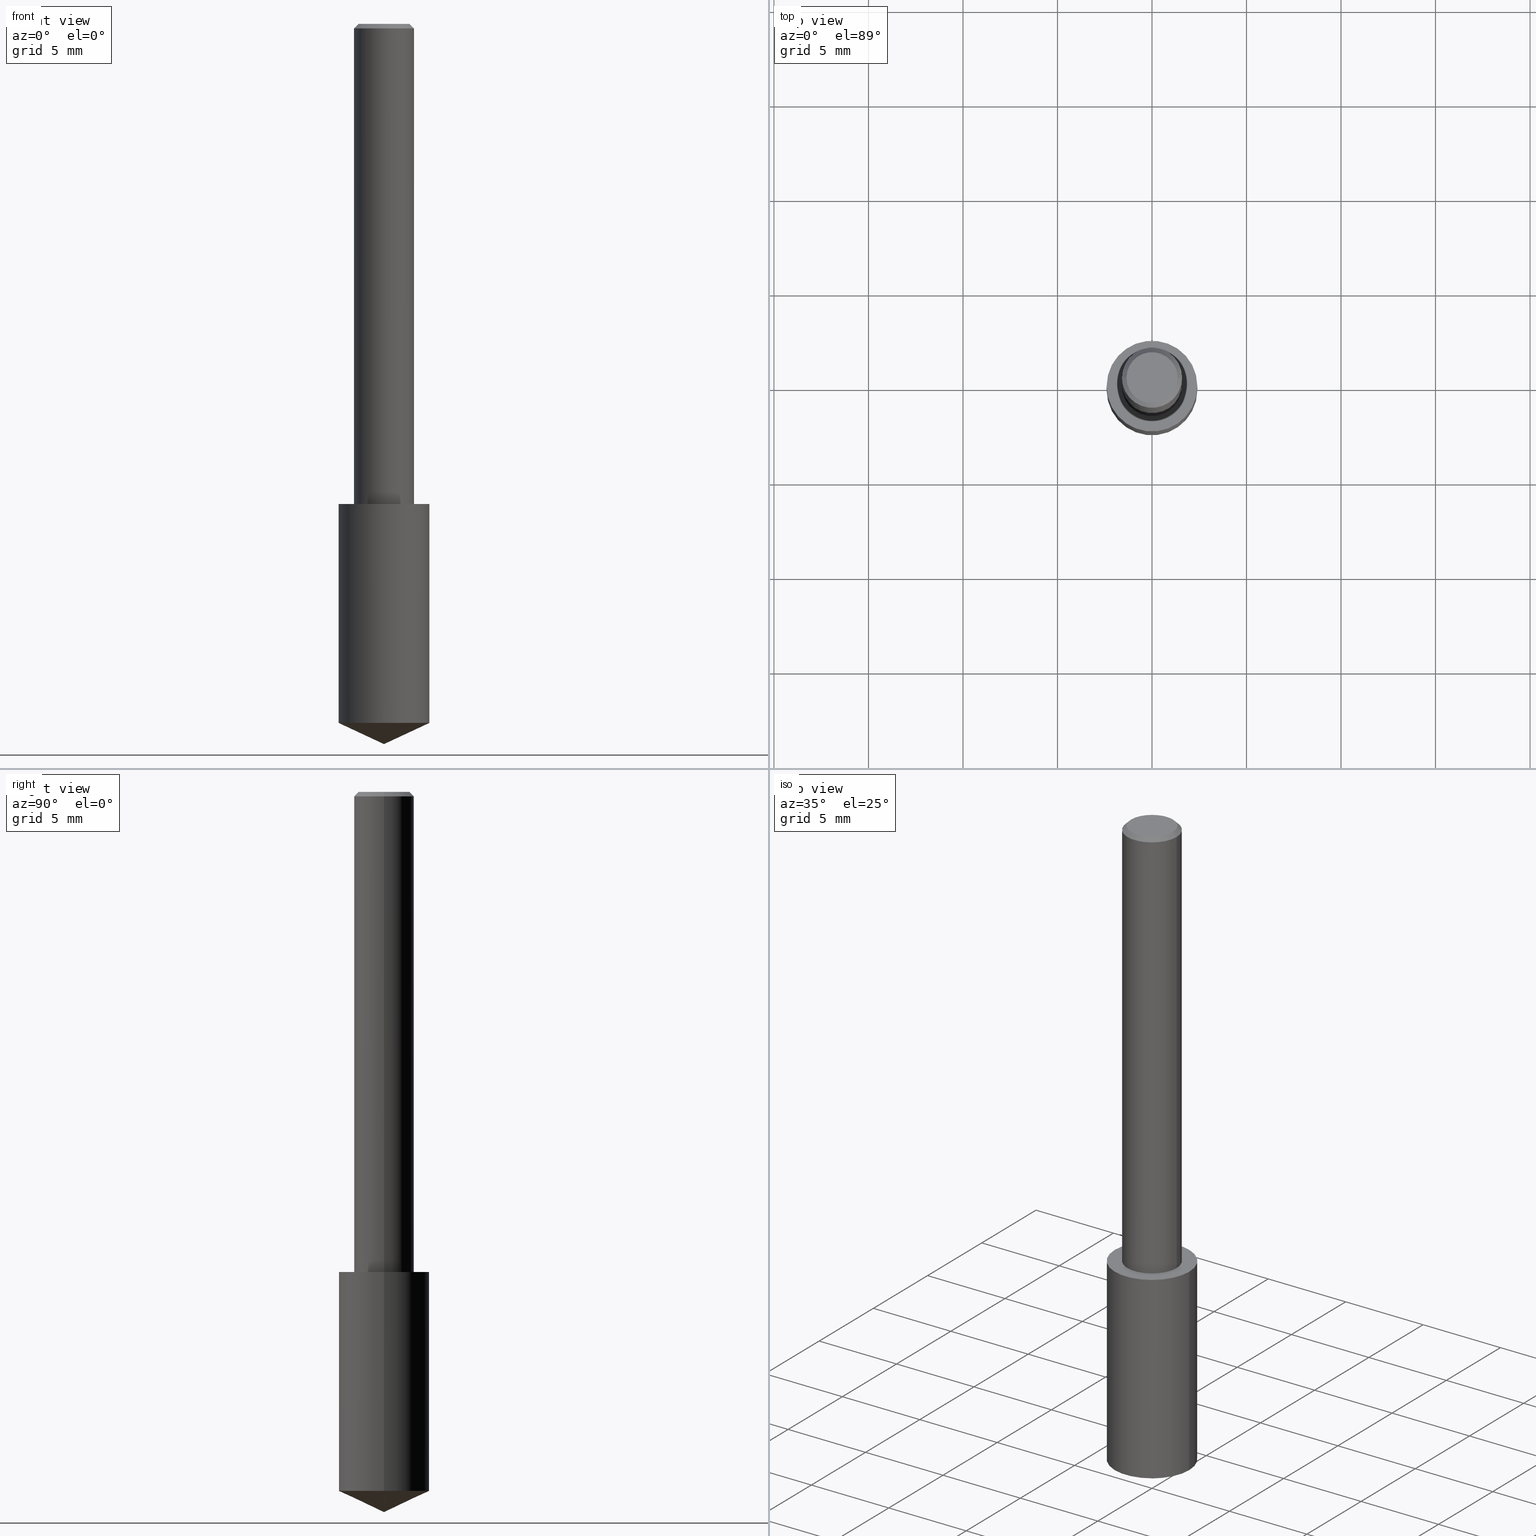
[diagram: canonical four-view strip — front | top / right | iso, engineering-drawing reading convention]
A machine part, canonical four-view strip (front | top / right | iso — engineering-drawing reading convention). The complete STEP part file that produces these views, byte-faithful:
ISO-10303-21;
HEADER;
FILE_DESCRIPTION (( 'STEP AP203' ),
    '1' );
FILE_NAME ('06124.STEP',
    '2024-04-30T18:30:06',
    ( '' ),
    ( '' ),
    'SwSTEP 2.0',
    'SolidWorks 2023',
    '' );
FILE_SCHEMA (( 'CONFIG_CONTROL_DESIGN' ));
ENDSEC;

DATA;
#1 = CARTESIAN_POINT ( 'NONE',  ( -0.09450000000000001454, -4.411903248986985027E-15, -1.455933926304352921 ) ) ;
#2 = DIRECTION ( 'NONE',  ( -2.445468806185136597E-29, 3.491481338843145583E-15, 1.000000000000000000 ) ) ;
#3 = FACE_OUTER_BOUND ( 'NONE', #249, .T. ) ;
#4 = EDGE_CURVE ( 'NONE', #139, #196, #252, .T. ) ;
#5 = VECTOR ( 'NONE', #302, 39.37007874015748143 ) ;
#6 = CALENDAR_DATE ( 2024, 30, 4 ) ;
#7 = EDGE_CURVE ( 'NONE', #191, #50, #194, .T. ) ;
#8 = CARTESIAN_POINT ( 'NONE',  ( -0.05312499999999999861, 3.873362110279099094E-16, 3.061616995216862494E-21 ) ) ;
#9 = ORIENTED_EDGE ( 'NONE', *, *, #129, .F. ) ;
#10 = AXIS2_PLACEMENT_3D ( 'NONE', #43, #44, #288 ) ;
#11 = ADVANCED_FACE ( 'NONE', ( #282 ), #14, .T. ) ;
#12 = CARTESIAN_POINT ( 'NONE',  ( 0.000000000000000000, 0.000000000000000000, 0.000000000000000000 ) ) ;
#13 = ORIENTED_EDGE ( 'NONE', *, *, #129, .T. ) ;
#14 = CYLINDRICAL_SURFACE ( 'NONE', #228, 0.06250000000000006939 ) ;
#15 = CARTESIAN_POINT ( 'NONE',  ( -9.261009624683002666E-28, 1.322226732217803884E-13, 37.87007874015748143 ) ) ;
#16 = EDGE_LOOP ( 'NONE', ( #276, #295, #267 ) ) ;
#17 = CARTESIAN_POINT ( 'NONE',  ( 3.668203209277704895E-29, -5.237222008264718177E-15, -1.500000000000000222 ) ) ;
#18 = CIRCLE ( 'NONE', #10, 0.06250000000000000000 ) ;
#19 = CARTESIAN_POINT ( 'NONE',  ( 2.292627005798582375E-31, -3.273263755165473266E-17, -0.009375000000000069042 ) ) ;
#20 = CARTESIAN_POINT ( 'NONE',  ( 0.06250000000000000000, -4.691678049070464390E-16, -0.009375000000000069042 ) ) ;
#21 = APPROVAL ( #108, 'UNSPECIFIED' ) ;
#22 = CARTESIAN_POINT ( 'NONE',  ( 2.445468806185136877E-29, -3.491481338843145977E-15, -1.000000000000000222 ) ) ;
#23 = ADVANCED_FACE ( 'NONE', ( #88 ), #172, .T. ) ;
#24 = FACE_OUTER_BOUND ( 'NONE', #56, .T. ) ;
#25 = AXIS2_PLACEMENT_3D ( 'NONE', #145, #337, #101 ) ;
#26 = PERSON_AND_ORGANIZATION ( #151, #235 ) ;
#27 = CARTESIAN_POINT ( 'NONE',  ( 3.668203209277704895E-29, -5.237222008264718177E-15, -1.500000000000000222 ) ) ;
#28 = CARTESIAN_POINT ( 'NONE',  ( 2.292627005798582375E-31, -3.273263755165473266E-17, -0.009375000000000069042 ) ) ;
#29 = VERTEX_POINT ( 'NONE', #61 ) ;
#30 = CARTESIAN_POINT ( 'NONE',  ( 2.445468806185137438E-29, -3.491481338843146371E-15, -1.000000000000000222 ) ) ;
#31 = ORIENTED_EDGE ( 'NONE', *, *, #125, .F. ) ;
#32 = AXIS2_PLACEMENT_3D ( 'NONE', #19, #66, #227 ) ;
#33 = PERSON_AND_ORGANIZATION_ROLE ( 'design_owner' ) ;
#34 = ORIENTED_EDGE ( 'NONE', *, *, #153, .F. ) ;
#35 = ORIENTED_EDGE ( 'NONE', *, *, #253, .T. ) ;
#36 = CARTESIAN_POINT ( 'NONE',  ( 2.445468806185137438E-29, -3.491481338843146371E-15, -1.000000000000000222 ) ) ;
#37 = VECTOR ( 'NONE', #74, 39.37007874015748143 ) ;
#38 = CARTESIAN_POINT ( 'NONE',  ( 2.445468806185137438E-29, -3.491481338843146371E-15, -1.000000000000000222 ) ) ;
#39 = CARTESIAN_POINT ( 'NONE',  ( -7.487088864773345706E-50, 1.068957861474247695E-35, 3.061616997868395197E-21 ) ) ;
#40 = ADVANCED_FACE ( 'NONE', ( #254 ), #213, .T. ) ;
#41 = DIRECTION ( 'NONE',  ( -2.445468806185136597E-29, 3.491481338843145583E-15, 1.000000000000000000 ) ) ;
#42 = AXIS2_PLACEMENT_3D ( 'NONE', #38, #142, #137 ) ;
#43 = CARTESIAN_POINT ( 'NONE',  ( 2.292627005798582375E-31, -3.273263755165473266E-17, -0.009375000000000069042 ) ) ;
#44 = DIRECTION ( 'NONE',  ( -2.445468806185136597E-29, 3.491481338843145583E-15, 1.000000000000000000 ) ) ;
#45 = CARTESIAN_POINT ( 'NONE',  ( 3.454801746971892367E-29, -2.046059119973165044E-15, -1.000000000000000222 ) ) ;
#46 = CC_DESIGN_PERSON_AND_ORGANIZATION_ASSIGNMENT ( #89, #206, ( #80 ) ) ;
#47 = AXIS2_PLACEMENT_3D ( 'NONE', #39, #69, #207 ) ;
#48 = LOCAL_TIME ( 14, 30, 6.000000000000000000, #106 ) ;
#49 = ORIENTED_EDGE ( 'NONE', *, *, #147, .F. ) ;
#50 = VERTEX_POINT ( 'NONE', #313 ) ;
#51 = CARTESIAN_POINT ( 'NONE',  ( 0.06250000000000000000, -4.615137624123754923E-16, -0.009375000000000069042 ) ) ;
#52 = PRODUCT_DEFINITION_SHAPE ( 'NONE', 'NONE',  #80 ) ;
#53 = CARTESIAN_POINT ( 'NONE',  ( 0.000000000000000000, 0.000000000000000000, 0.000000000000000000 ) ) ;
#54 = EDGE_LOOP ( 'NONE', ( #193, #35 ) ) ;
#55 =( NAMED_UNIT ( * ) SI_UNIT ( $, .STERADIAN. ) SOLID_ANGLE_UNIT ( ) );
#56 = EDGE_LOOP ( 'NONE', ( #327, #301, #31 ) ) ;
#57 = CONICAL_SURFACE ( 'NONE', #265, 0.06250000000000000000, 0.7853981633974447263 ) ;
#58 = DIRECTION ( 'NONE',  ( -2.438088387897960049E-29, 3.491481338843145188E-15, 1.000000000000000000 ) ) ;
#59 = DIRECTION ( 'NONE',  ( -2.445468806185136877E-29, 3.491481338843145188E-15, 1.000000000000000000 ) ) ;
#60 = VERTEX_POINT ( 'NONE', #97 ) ;
#61 = CARTESIAN_POINT ( 'NONE',  ( -0.09449999999999998679, -3.615960851268418458E-15, -1.000000000000000222 ) ) ;
#62 = AXIS2_PLACEMENT_3D ( 'NONE', #15, #226, #336 ) ;
#63 = PERSON_AND_ORGANIZATION ( #151, #235 ) ;
#64 = DIRECTION ( 'NONE',  ( -1.000000000000000000, 6.982962677686265922E-15, -4.876176775795935793E-29 ) ) ;
#65 = EDGE_CURVE ( 'NONE', #310, #60, #299, .T. ) ;
#66 = DIRECTION ( 'NONE',  ( -2.445468806185136597E-29, 3.491481338843145583E-15, 1.000000000000000000 ) ) ;
#67 = CYLINDRICAL_SURFACE ( 'NONE', #68, 0.09449999999999998679 ) ;
#68 = AXIS2_PLACEMENT_3D ( 'NONE', #94, #143, #264 ) ;
#69 = DIRECTION ( 'NONE',  ( -2.445468806185136597E-29, 3.491481338843145583E-15, 1.000000000000000000 ) ) ;
#70 = CARTESIAN_POINT ( 'NONE',  ( 0.09449999999999998679, -4.151371311884497992E-15, -1.000000000000000222 ) ) ;
#71 = APPLICATION_CONTEXT ( 'configuration controlled 3d designs of mechanical parts and assemblies' ) ;
#72 = DATE_AND_TIME ( #144, #247 ) ;
#73 = APPROVAL_PERSON_ORGANIZATION ( #26, #248, #240 ) ;
#74 = DIRECTION ( 'NONE',  ( 0.7071067811865450192, -7.319954787623246579E-15, -0.7071067811865500152 ) ) ;
#75 = FACE_OUTER_BOUND ( 'NONE', #116, .T. ) ;
#76 = VECTOR ( 'NONE', #59, 39.37007874015748143 ) ;
#77 = APPROVAL_PERSON_ORGANIZATION ( #244, #21, #217 ) ;
#78 = ADVANCED_FACE ( 'NONE', ( #208 ), #67, .T. ) ;
#79 = ORIENTED_EDGE ( 'NONE', *, *, #4, .F. ) ;
#80 = PRODUCT_DEFINITION ( 'UNKNOWN', '', #174, #329 ) ;
#81 = VERTEX_POINT ( 'NONE', #1 ) ;
#82 = CARTESIAN_POINT ( 'NONE',  ( -0.06250000000000000000, -1.318017778347336672E-15, -0.009375000000000069042 ) ) ;
#83 = EDGE_LOOP ( 'NONE', ( #164, #175, #112, #79 ) ) ;
#84 = ORIENTED_EDGE ( 'NONE', *, *, #65, .T. ) ;
#85 = SHAPE_DEFINITION_REPRESENTATION ( #52, #103 ) ;
#86 = AXIS2_PLACEMENT_3D ( 'NONE', #28, #186, #133 ) ;
#87 = CC_DESIGN_APPROVAL ( #236, ( #174 ) ) ;
#88 = FACE_OUTER_BOUND ( 'NONE', #309, .T. ) ;
#89 = PERSON_AND_ORGANIZATION ( #151, #235 ) ;
#90 = ORIENTED_EDGE ( 'NONE', *, *, #219, .F. ) ;
#91 = DATE_AND_TIME ( #173, #325 ) ;
#92 = APPLICATION_CONTEXT ( 'configuration controlled 3d designs of mechanical parts and assemblies' ) ;
#93 = EDGE_CURVE ( 'NONE', #161, #305, #184, .T. ) ;
#94 = CARTESIAN_POINT ( 'NONE',  ( 2.445468806185137438E-29, -3.491481338843146371E-15, -1.000000000000000222 ) ) ;
#95 = AXIS2_PLACEMENT_3D ( 'NONE', #189, #113, #192 ) ;
#96 = CARTESIAN_POINT ( 'NONE',  ( 2.445468806185136877E-29, -3.491481338843145977E-15, -1.000000000000000222 ) ) ;
#97 = CARTESIAN_POINT ( 'NONE',  ( 0.05312499999999999861, -4.129888592719939842E-16, 3.061617000609493422E-21 ) ) ;
#98 = PLANE ( 'NONE',  #339 ) ;
#99 = CLOSED_SHELL ( 'NONE', ( #78, #210, #40, #23, #205 ) ) ;
#100 = AXIS2_PLACEMENT_3D ( 'NONE', #176, #41, #257 ) ;
#101 = DIRECTION ( 'NONE',  ( 1.000000000000000000, -6.982962677686266711E-15, 0.000000000000000000 ) ) ;
#102 = CARTESIAN_POINT ( 'NONE',  ( -0.06250000000000006939, 4.440892098500631092E-16, -3.074334431409319267E-30 ) ) ;
#103 = ADVANCED_BREP_SHAPE_REPRESENTATION ( '06124', ( #168, #178, #115 ), #131 ) ;
#104 = AXIS2_PLACEMENT_3D ( 'NONE', #22, #126, #233 ) ;
#105 = DATE_AND_TIME ( #6, #278 ) ;
#106 = COORDINATED_UNIVERSAL_TIME_OFFSET ( 5, 0, .BEHIND. ) ;
#107 = PLANE ( 'NONE',  #117 ) ;
#108 = APPROVAL_STATUS ( 'not_yet_approved' ) ;
#109 = AXIS2_PLACEMENT_3D ( 'NONE', #45, #148, #64 ) ;
#110 = SECURITY_CLASSIFICATION ( '', '', #154 ) ;
#111 = PERSON_AND_ORGANIZATION ( #151, #235 ) ;
#112 = ORIENTED_EDGE ( 'NONE', *, *, #229, .F. ) ;
#113 = DIRECTION ( 'NONE',  ( -2.445468806185136597E-29, 3.491481338843145583E-15, 1.000000000000000000 ) ) ;
#114 = DIRECTION ( 'NONE',  ( -2.445468806185136597E-29, 3.491481338843145583E-15, 1.000000000000000000 ) ) ;
#115 = AXIS2_PLACEMENT_3D ( 'NONE', #53, #320, #250 ) ;
#116 = EDGE_LOOP ( 'NONE', ( #279, #185, #256, #220 ) ) ;
#117 = AXIS2_PLACEMENT_3D ( 'NONE', #30, #58, #331 ) ;
#118 = DATE_AND_TIME ( #334, #283 ) ;
#119 = ORIENTED_EDGE ( 'NONE', *, *, #253, .F. ) ;
#120 = ORIENTED_EDGE ( 'NONE', *, *, #215, .T. ) ;
#121 = CARTESIAN_POINT ( 'NONE',  ( -0.09449999999999998679, -2.820018453549851888E-15, -1.000000000000000222 ) ) ;
#122 = VECTOR ( 'NONE', #124, 39.37007874015748143 ) ;
#123 = CARTESIAN_POINT ( 'NONE',  ( 3.560441000643944495E-29, -5.083366134280279905E-15, -1.455933926304352921 ) ) ;
#124 = DIRECTION ( 'NONE',  ( -2.445468806185136877E-29, 3.491481338843145188E-15, 1.000000000000000000 ) ) ;
#125 = EDGE_CURVE ( 'NONE', #139, #81, #333, .T. ) ;
#126 = DIRECTION ( 'NONE',  ( -2.445468806185136597E-29, 3.491481338843145583E-15, 1.000000000000000000 ) ) ;
#127 = CC_DESIGN_APPROVAL ( #21, ( #80 ) ) ;
#128 = LINE ( 'NONE', #237, #5 ) ;
#129 = EDGE_CURVE ( 'NONE', #60, #310, #156, .T. ) ;
#130 = PERSON_AND_ORGANIZATION_ROLE ( 'classification_officer' ) ;
#131 =( GEOMETRIC_REPRESENTATION_CONTEXT ( 3 ) GLOBAL_UNCERTAINTY_ASSIGNED_CONTEXT ( ( #163 ) ) GLOBAL_UNIT_ASSIGNED_CONTEXT ( ( #246, #328, #55 ) ) REPRESENTATION_CONTEXT ( 'NONE', 'WORKASPACE' ) );
#132 = APPROVAL_STATUS ( 'not_yet_approved' ) ;
#133 = DIRECTION ( 'NONE',  ( -1.000000000000000000, 6.982962677686266711E-15, 0.000000000000000000 ) ) ;
#134 = PERSON_AND_ORGANIZATION ( #151, #235 ) ;
#135 = LINE ( 'NONE', #102, #223 ) ;
#136 = CC_DESIGN_APPROVAL ( #248, ( #110 ) ) ;
#137 = DIRECTION ( 'NONE',  ( 1.000000000000000000, -6.982962677686264344E-15, 0.000000000000000000 ) ) ;
#138 = CARTESIAN_POINT ( 'NONE',  ( 0.09449999999999998679, -4.151371311884498781E-15, -1.000000000000000222 ) ) ;
#139 = VERTEX_POINT ( 'NONE', #292 ) ;
#140 = VECTOR ( 'NONE', #202, 39.37007874015748143 ) ;
#141 = DIRECTION ( 'NONE',  ( 1.000000000000000000, -6.982962677686266711E-15, 0.000000000000000000 ) ) ;
#142 = DIRECTION ( 'NONE',  ( -2.445468806185136597E-29, 3.491481338843145583E-15, 1.000000000000000000 ) ) ;
#143 = DIRECTION ( 'NONE',  ( -2.445468806185136597E-29, 3.491481338843145583E-15, 1.000000000000000000 ) ) ;
#144 = CALENDAR_DATE ( 2024, 30, 4 ) ;
#145 = CARTESIAN_POINT ( 'NONE',  ( -9.261009624683002666E-28, 1.322226732217803884E-13, 37.87007874015748143 ) ) ;
#146 = CIRCLE ( 'NONE', #293, 0.06250000000000012490 ) ;
#147 = EDGE_CURVE ( 'NONE', #81, #29, #319, .T. ) ;
#148 = DIRECTION ( 'NONE',  ( 2.438088387897960049E-29, -3.491481338843145188E-15, -1.000000000000000000 ) ) ;
#149 = DIRECTION ( 'NONE',  ( 2.438088387897960049E-29, -3.491481338843145188E-15, -1.000000000000000000 ) ) ;
#150 = CC_DESIGN_DATE_AND_TIME_ASSIGNMENT ( #91, #199, ( #80 ) ) ;
#151 = PERSON ( 'UNSPECIFIED', 'UNSPECIFIED', 'UNSPECIFIED', ('UNSPECIFIED'), ('UNSPECIFIED'), ('UNSPECIFIED') ) ;
#152 = DIRECTION ( 'NONE',  ( 2.445468806185136597E-29, -3.491481338843145583E-15, -1.000000000000000000 ) ) ;
#153 = EDGE_CURVE ( 'NONE', #305, #161, #18, .T. ) ;
#154 = SECURITY_CLASSIFICATION_LEVEL ( 'unclassified' ) ;
#155 = PERSON_AND_ORGANIZATION_ROLE ( 'design_supplier' ) ;
#156 = CIRCLE ( 'NONE', #100, 0.05312499999999999861 ) ;
#157 = APPLICATION_PROTOCOL_DEFINITION ( 'international standard', 'config_control_design', 1994, #92 ) ;
#158 = ORIENTED_EDGE ( 'NONE', *, *, #321, .F. ) ;
#159 = CALENDAR_DATE ( 2024, 30, 4 ) ;
#160 = CARTESIAN_POINT ( 'NONE',  ( 3.668203209277704895E-29, -5.237222008264718177E-15, -1.500000000000000222 ) ) ;
#161 = VERTEX_POINT ( 'NONE', #20 ) ;
#162 = PRODUCT_RELATED_PRODUCT_CATEGORY ( 'detail', '', ( #242 ) ) ;
#163 = UNCERTAINTY_MEASURE_WITH_UNIT (LENGTH_MEASURE( 1.000000000000000082E-05 ), #246, 'distance_accuracy_value', 'NONE');
#164 = ORIENTED_EDGE ( 'NONE', *, *, #125, .T. ) ;
#165 = PERSON_AND_ORGANIZATION_ROLE ( 'creator' ) ;
#166 = EDGE_CURVE ( 'NONE', #303, #139, #289, .T. ) ;
#167 = AXIS2_PLACEMENT_3D ( 'NONE', #286, #179, #318 ) ;
#168 = MANIFOLD_SOLID_BREP ( 'Body-Move/Copy2[1]', #99 ) ;
#169 = ORIENTED_EDGE ( 'NONE', *, *, #7, .F. ) ;
#170 = LINE ( 'NONE', #51, #37 ) ;
#171 = ORIENTED_EDGE ( 'NONE', *, *, #273, .F. ) ;
#172 = CYLINDRICAL_SURFACE ( 'NONE', #269, 0.09449999999999998679 ) ;
#173 = CALENDAR_DATE ( 2024, 30, 4 ) ;
#174 = PRODUCT_DEFINITION_FORMATION_WITH_SPECIFIED_SOURCE ( 'ANY', '', #242, .NOT_KNOWN. ) ;
#175 = ORIENTED_EDGE ( 'NONE', *, *, #147, .T. ) ;
#176 = CARTESIAN_POINT ( 'NONE',  ( -7.487088864773345706E-50, 1.068957861474247695E-35, 3.061616997868395197E-21 ) ) ;
#177 = PLANE ( 'NONE',  #109 ) ;
#178 = MANIFOLD_SOLID_BREP ( 'Body-Move/Copy2[2]', #234 ) ;
#179 = DIRECTION ( 'NONE',  ( -2.445468806185136597E-29, 3.491481338843145583E-15, 1.000000000000000000 ) ) ;
#180 = CIRCLE ( 'NONE', #259, 0.09449999999999998679 ) ;
#181 = FACE_OUTER_BOUND ( 'NONE', #54, .T. ) ;
#182 = CARTESIAN_POINT ( 'NONE',  ( 0.06250000000000012490, -3.927916506198539224E-15, -1.000000000000000222 ) ) ;
#183 = CC_DESIGN_PERSON_AND_ORGANIZATION_ASSIGNMENT ( #296, #155, ( #174 ) ) ;
#184 = CIRCLE ( 'NONE', #32, 0.06250000000000000000 ) ;
#185 = ORIENTED_EDGE ( 'NONE', *, *, #65, .F. ) ;
#186 = DIRECTION ( 'NONE',  ( 2.445468806185136597E-29, -3.491481338843145583E-15, -1.000000000000000000 ) ) ;
#187 = DIRECTION ( 'NONE',  ( -2.445468806185136877E-29, 3.491481338843145188E-15, 1.000000000000000000 ) ) ;
#188 = ORIENTED_EDGE ( 'NONE', *, *, #321, .T. ) ;
#189 = CARTESIAN_POINT ( 'NONE',  ( 0.000000000000000000, 0.000000000000000000, 0.000000000000000000 ) ) ;
#190 = APPROVAL_DATE_TIME ( #218, #248 ) ;
#191 = VERTEX_POINT ( 'NONE', #182 ) ;
#192 = DIRECTION ( 'NONE',  ( 1.000000000000000000, -6.982962677686266711E-15, 4.876176775795935793E-29 ) ) ;
#193 = ORIENTED_EDGE ( 'NONE', *, *, #229, .T. ) ;
#194 = CIRCLE ( 'NONE', #42, 0.06250000000000012490 ) ;
#195 = ORIENTED_EDGE ( 'NONE', *, *, #273, .T. ) ;
#196 = VERTEX_POINT ( 'NONE', #70 ) ;
#197 = ADVANCED_FACE ( 'NONE', ( #231 ), #57, .T. ) ;
#198 = DIRECTION ( 'NONE',  ( -2.445468806185136597E-29, 3.491481338843145583E-15, 1.000000000000000000 ) ) ;
#199 = DATE_TIME_ROLE ( 'creation_date' ) ;
#200 = CC_DESIGN_PERSON_AND_ORGANIZATION_ASSIGNMENT ( #134, #33, ( #242 ) ) ;
#201 = CIRCLE ( 'NONE', #104, 0.09449999999999998679 ) ;
#202 = DIRECTION ( 'NONE',  ( 0.9063077870366507138, -4.853149677051390623E-15, 0.4226182617406978315 ) ) ;
#203 = APPROVAL_ROLE ( '' ) ;
#204 = DIRECTION ( 'NONE',  ( 1.000000000000000000, -6.982962677686266711E-15, 0.000000000000000000 ) ) ;
#205 = ADVANCED_FACE ( 'NONE', ( #181 ), #177, .F. ) ;
#206 = PERSON_AND_ORGANIZATION_ROLE ( 'creator' ) ;
#207 = DIRECTION ( 'NONE',  ( 1.000000000000000000, -6.982962677686266711E-15, 4.876176628004948512E-29 ) ) ;
#208 = FACE_OUTER_BOUND ( 'NONE', #83, .T. ) ;
#209 = CONICAL_SURFACE ( 'NONE', #25, 84.42940631927434936, 1.134464013796316006 ) ;
#210 = ADVANCED_FACE ( 'NONE', ( #24 ), #209, .T. ) ;
#211 = CYLINDRICAL_SURFACE ( 'NONE', #95, 0.06250000000000006939 ) ;
#212 = APPLICATION_PROTOCOL_DEFINITION ( 'international standard', 'config_control_design', 1994, #71 ) ;
#213 = CONICAL_SURFACE ( 'NONE', #62, 84.42940631927434936, 1.134464013796316006 ) ;
#214 = DATE_TIME_ROLE ( 'classification_date' ) ;
#215 = EDGE_CURVE ( 'NONE', #81, #139, #322, .T. ) ;
#216 = APPROVAL_PERSON_ORGANIZATION ( #63, #236, #203 ) ;
#217 = APPROVAL_ROLE ( '' ) ;
#218 = DATE_AND_TIME ( #159, #48 ) ;
#219 = EDGE_CURVE ( 'NONE', #310, #305, #340, .T. ) ;
#220 = ORIENTED_EDGE ( 'NONE', *, *, #153, .T. ) ;
#221 = MECHANICAL_CONTEXT ( 'NONE', #71, 'mechanical' ) ;
#222 = EDGE_LOOP ( 'NONE', ( #84, #13 ) ) ;
#223 = VECTOR ( 'NONE', #187, 39.37007874015748143 ) ;
#224 = DIRECTION ( 'NONE',  ( 1.000000000000000000, -6.982962677686266711E-15, 4.876176775795935793E-29 ) ) ;
#225 = APPROVAL_DATE_TIME ( #118, #21 ) ;
#226 = DIRECTION ( 'NONE',  ( -2.445468806185136597E-29, 3.491481338843145583E-15, 1.000000000000000000 ) ) ;
#227 = DIRECTION ( 'NONE',  ( 1.000000000000000000, -6.982962677686266711E-15, 0.000000000000000000 ) ) ;
#228 = AXIS2_PLACEMENT_3D ( 'NONE', #12, #114, #224 ) ;
#229 = EDGE_CURVE ( 'NONE', #196, #29, #180, .T. ) ;
#230 = DIRECTION ( 'NONE',  ( -1.000000000000000000, 6.982962677686266711E-15, 0.000000000000000000 ) ) ;
#231 = FACE_OUTER_BOUND ( 'NONE', #251, .T. ) ;
#232 = DIRECTION ( 'NONE',  ( -0.7071067811865450192, 2.468850131082230634E-15, -0.7071067811865500152 ) ) ;
#233 = DIRECTION ( 'NONE',  ( 1.000000000000000000, -6.982962677686266711E-15, 0.000000000000000000 ) ) ;
#234 = CLOSED_SHELL ( 'NONE', ( #197, #255, #312, #11, #307, #243 ) ) ;
#235 = ORGANIZATION ( 'UNSPECIFIED', 'UNSPECIFIED', '' ) ;
#236 = APPROVAL ( #338, 'UNSPECIFIED' ) ;
#237 = CARTESIAN_POINT ( 'NONE',  ( 0.06250000000000006939, -4.364351673553921624E-16, 3.047610484872463374E-30 ) ) ;
#238 = ORIENTED_EDGE ( 'NONE', *, *, #93, .F. ) ;
#239 = CONICAL_SURFACE ( 'NONE', #86, 0.06250000000000000000, 0.7853981633974447263 ) ;
#240 = APPROVAL_ROLE ( '' ) ;
#241 = DIRECTION ( 'NONE',  ( -0.9063077870366507138, 7.915267918739014631E-15, 0.4226182617406978315 ) ) ;
#242 = PRODUCT ( '06124', '06124', '', ( #221 ) ) ;
#243 = ADVANCED_FACE ( 'NONE', ( #315 ), #98, .F. ) ;
#244 = PERSON_AND_ORGANIZATION ( #151, #235 ) ;
#245 = ORIENTED_EDGE ( 'NONE', *, *, #294, .F. ) ;
#246 =( CONVERSION_BASED_UNIT ( 'INCH', #308 ) LENGTH_UNIT ( ) NAMED_UNIT ( #298 ) );
#247 = LOCAL_TIME ( 14, 30, 6.000000000000000000, #287 ) ;
#248 = APPROVAL ( #132, 'UNSPECIFIED' ) ;
#249 = EDGE_LOOP ( 'NONE', ( #281, #195, #238, #158 ) ) ;
#250 = DIRECTION ( 'NONE',  ( 1.000000000000000000, 0.000000000000000000, 0.000000000000000000 ) ) ;
#251 = EDGE_LOOP ( 'NONE', ( #9, #335, #274, #90 ) ) ;
#252 = LINE ( 'NONE', #138, #76 ) ;
#253 = EDGE_CURVE ( 'NONE', #29, #196, #201, .T. ) ;
#254 = FACE_OUTER_BOUND ( 'NONE', #16, .T. ) ;
#255 = ADVANCED_FACE ( 'NONE', ( #3 ), #211, .T. ) ;
#256 = ORIENTED_EDGE ( 'NONE', *, *, #219, .T. ) ;
#257 = DIRECTION ( 'NONE',  ( 1.000000000000000000, -6.982962677686266711E-15, 4.876176628004948512E-29 ) ) ;
#258 = CC_DESIGN_DATE_AND_TIME_ASSIGNMENT ( #105, #214, ( #110 ) ) ;
#259 = AXIS2_PLACEMENT_3D ( 'NONE', #96, #2, #204 ) ;
#260 = CARTESIAN_POINT ( 'NONE',  ( -0.06250000000000000000, 4.037025298037369491E-16, -0.009375000000000069042 ) ) ;
#261 = APPROVAL_DATE_TIME ( #72, #236 ) ;
#262 = DIRECTION ( 'NONE',  ( 1.000000000000000000, -6.982962677686266711E-15, 0.000000000000000000 ) ) ;
#263 = DIRECTION ( 'NONE',  ( -1.000000000000000000, 6.982962677686265922E-15, -4.876176775795935793E-29 ) ) ;
#264 = DIRECTION ( 'NONE',  ( 1.000000000000000000, -6.982962677686266711E-15, 0.000000000000000000 ) ) ;
#265 = AXIS2_PLACEMENT_3D ( 'NONE', #314, #152, #230 ) ;
#266 = CC_DESIGN_PERSON_AND_ORGANIZATION_ASSIGNMENT ( #268, #130, ( #110 ) ) ;
#267 = ORIENTED_EDGE ( 'NONE', *, *, #215, .F. ) ;
#268 = PERSON_AND_ORGANIZATION ( #151, #235 ) ;
#269 = AXIS2_PLACEMENT_3D ( 'NONE', #36, #198, #141 ) ;
#270 = COORDINATED_UNIVERSAL_TIME_OFFSET ( 5, 0, .BEHIND. ) ;
#271 = VECTOR ( 'NONE', #232, 39.37007874015748143 ) ;
#272 = FACE_OUTER_BOUND ( 'NONE', #323, .T. ) ;
#273 = EDGE_CURVE ( 'NONE', #50, #305, #135, .T. ) ;
#274 = ORIENTED_EDGE ( 'NONE', *, *, #93, .T. ) ;
#275 =( LENGTH_UNIT ( ) NAMED_UNIT ( * ) SI_UNIT ( $, .METRE. ) );
#276 = ORIENTED_EDGE ( 'NONE', *, *, #290, .F. ) ;
#277 = AXIS2_PLACEMENT_3D ( 'NONE', #123, #316, #262 ) ;
#278 = LOCAL_TIME ( 14, 30, 6.000000000000000000, #270 ) ;
#279 = ORIENTED_EDGE ( 'NONE', *, *, #317, .F. ) ;
#280 = LINE ( 'NONE', #160, #306 ) ;
#281 = ORIENTED_EDGE ( 'NONE', *, *, #7, .T. ) ;
#282 = FACE_OUTER_BOUND ( 'NONE', #332, .T. ) ;
#283 = LOCAL_TIME ( 14, 30, 6.000000000000000000, #326 ) ;
#284 = CC_DESIGN_SECURITY_CLASSIFICATION ( #110, ( #174 ) ) ;
#285 = ORIENTED_EDGE ( 'NONE', *, *, #294, .T. ) ;
#286 = CARTESIAN_POINT ( 'NONE',  ( 3.560441000643944495E-29, -5.083366134280279905E-15, -1.455933926304352921 ) ) ;
#287 = COORDINATED_UNIVERSAL_TIME_OFFSET ( 5, 0, .BEHIND. ) ;
#288 = DIRECTION ( 'NONE',  ( 1.000000000000000000, -6.982962677686266711E-15, 0.000000000000000000 ) ) ;
#289 = LINE ( 'NONE', #17, #140 ) ;
#290 = EDGE_CURVE ( 'NONE', #303, #81, #280, .T. ) ;
#291 = CARTESIAN_POINT ( 'NONE',  ( -3.743544432386672853E-50, 5.344789307371238476E-36, 1.530808498934197599E-21 ) ) ;
#292 = CARTESIAN_POINT ( 'NONE',  ( 0.09450000000000001454, -5.743256107321631920E-15, -1.455933926304352921 ) ) ;
#293 = AXIS2_PLACEMENT_3D ( 'NONE', #304, #300, #324 ) ;
#294 = EDGE_CURVE ( 'NONE', #50, #191, #146, .T. ) ;
#295 = ORIENTED_EDGE ( 'NONE', *, *, #166, .T. ) ;
#296 = PERSON_AND_ORGANIZATION ( #151, #235 ) ;
#297 = CC_DESIGN_PERSON_AND_ORGANIZATION_ASSIGNMENT ( #111, #165, ( #174 ) ) ;
#298 = DIMENSIONAL_EXPONENTS ( 1.000000000000000000, 0.000000000000000000, 0.000000000000000000, 0.000000000000000000, 0.000000000000000000, 0.000000000000000000, 0.000000000000000000 ) ;
#299 = CIRCLE ( 'NONE', #47, 0.05312499999999999861 ) ;
#300 = DIRECTION ( 'NONE',  ( -2.445468806185136597E-29, 3.491481338843145583E-15, 1.000000000000000000 ) ) ;
#301 = ORIENTED_EDGE ( 'NONE', *, *, #290, .T. ) ;
#302 = DIRECTION ( 'NONE',  ( -2.445468806185136877E-29, 3.491481338843145188E-15, 1.000000000000000000 ) ) ;
#303 = VERTEX_POINT ( 'NONE', #27 ) ;
#304 = CARTESIAN_POINT ( 'NONE',  ( 2.445468806185137438E-29, -3.491481338843146371E-15, -1.000000000000000222 ) ) ;
#305 = VERTEX_POINT ( 'NONE', #82 ) ;
#306 = VECTOR ( 'NONE', #241, 39.37007874015748143 ) ;
#307 = ADVANCED_FACE ( 'NONE', ( #75 ), #239, .T. ) ;
#308 = LENGTH_MEASURE_WITH_UNIT ( LENGTH_MEASURE( 0.02539999999999999897 ), #275 );
#309 = EDGE_LOOP ( 'NONE', ( #49, #120, #330, #119 ) ) ;
#310 = VERTEX_POINT ( 'NONE', #8 ) ;
#311 = COORDINATED_UNIVERSAL_TIME_OFFSET ( 5, 0, .BEHIND. ) ;
#312 = ADVANCED_FACE ( 'NONE', ( #272 ), #107, .F. ) ;
#313 = CARTESIAN_POINT ( 'NONE',  ( -0.06250000000000012490, -1.318017778347335489E-15, -1.000000000000000222 ) ) ;
#314 = CARTESIAN_POINT ( 'NONE',  ( 2.292627005798582375E-31, -3.273263755165473266E-17, -0.009375000000000069042 ) ) ;
#315 = FACE_OUTER_BOUND ( 'NONE', #222, .T. ) ;
#316 = DIRECTION ( 'NONE',  ( -2.445468806185136597E-29, 3.491481338843145583E-15, 1.000000000000000000 ) ) ;
#317 = EDGE_CURVE ( 'NONE', #60, #161, #170, .T. ) ;
#318 = DIRECTION ( 'NONE',  ( 1.000000000000000000, -6.982962677686266711E-15, 0.000000000000000000 ) ) ;
#319 = LINE ( 'NONE', #121, #122 ) ;
#320 = DIRECTION ( 'NONE',  ( 0.000000000000000000, 0.000000000000000000, 1.000000000000000000 ) ) ;
#321 = EDGE_CURVE ( 'NONE', #191, #161, #128, .T. ) ;
#322 = CIRCLE ( 'NONE', #167, 0.09449999999999998679 ) ;
#323 = EDGE_LOOP ( 'NONE', ( #169, #245 ) ) ;
#324 = DIRECTION ( 'NONE',  ( 1.000000000000000000, -6.982962677686264344E-15, 0.000000000000000000 ) ) ;
#325 = LOCAL_TIME ( 14, 30, 6.000000000000000000, #311 ) ;
#326 = COORDINATED_UNIVERSAL_TIME_OFFSET ( 5, 0, .BEHIND. ) ;
#327 = ORIENTED_EDGE ( 'NONE', *, *, #166, .F. ) ;
#328 =( NAMED_UNIT ( * ) PLANE_ANGLE_UNIT ( ) SI_UNIT ( $, .RADIAN. ) );
#329 = DESIGN_CONTEXT ( 'detailed design', #92, 'design' ) ;
#330 = ORIENTED_EDGE ( 'NONE', *, *, #4, .T. ) ;
#331 = DIRECTION ( 'NONE',  ( 1.000000000000000000, -6.982962677686265922E-15, 4.876176775795935793E-29 ) ) ;
#332 = EDGE_LOOP ( 'NONE', ( #171, #285, #188, #34 ) ) ;
#333 = CIRCLE ( 'NONE', #277, 0.09449999999999998679 ) ;
#334 = CALENDAR_DATE ( 2024, 30, 4 ) ;
#335 = ORIENTED_EDGE ( 'NONE', *, *, #317, .T. ) ;
#336 = DIRECTION ( 'NONE',  ( 1.000000000000000000, -6.982962677686266711E-15, 0.000000000000000000 ) ) ;
#337 = DIRECTION ( 'NONE',  ( -2.445468806185136597E-29, 3.491481338843145583E-15, 1.000000000000000000 ) ) ;
#338 = APPROVAL_STATUS ( 'not_yet_approved' ) ;
#339 = AXIS2_PLACEMENT_3D ( 'NONE', #291, #149, #263 ) ;
#340 = LINE ( 'NONE', #260, #271 ) ;
ENDSEC;
END-ISO-10303-21;
